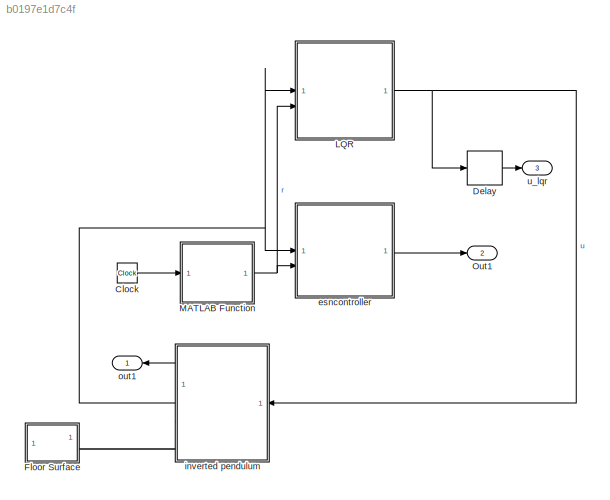
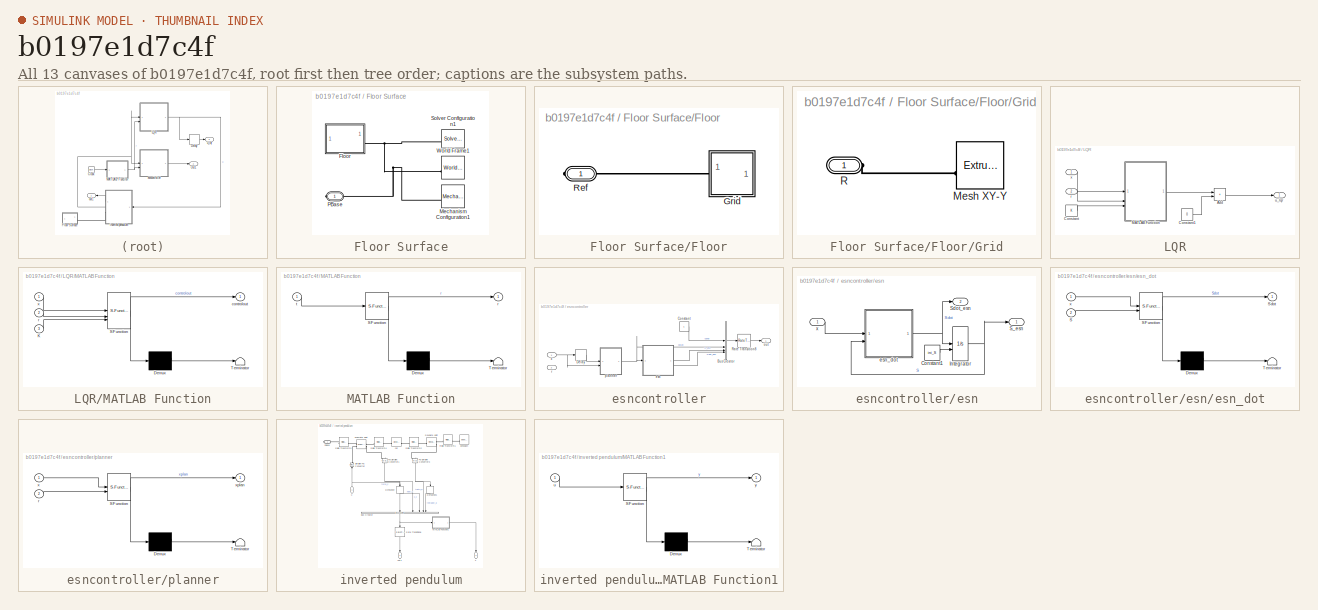
[diagram: thumbnail index - all 13 canvases of the model, root first then tree order]
MODEL slx_b0197e1d7c4f
KIND model
CONFIG AbsTol = auto
CONFIG EnableMultiTasking = off
CONFIG FixedStep = auto
CONFIG MaxStep = auto
CONFIG MinStep = auto
CONFIG RelTol = 1e-3
CONFIG SampleTimeConstraint = Unconstrained
CONFIG SolverName = VariableStepAuto
CONFIG StartTime = 0.0
CONFIG StopTime = stoptime
BLOCK [Clock] Clock
BLOCK [Delay] Delay
  DelayLength = esn.delaylen/esn.timestep
  InitialCondition = 0
  InputPortMap = u0
BLOCK [SubSystem] Floor Surface
BLOCK [SubSystem] Floor Surface/Floor
BLOCK [SubSystem] Floor Surface/Floor/Grid
BLOCK [Reference] Floor Surface/Floor/Grid/Mesh XY-Y  REF=sm_lib/Body Elements/Extruded Solid
  SourceBlock = sm_lib/Body Elements/Extruded Solid
  SourceType = Extruded Solid
BLOCK [PMIOPort] Floor Surface/Floor/Grid/R
  Side = Left
BLOCK [PMIOPort] Floor Surface/Floor/Ref
  NameLocation = top
  Side = Right
BLOCK [Reference] Floor Surface/Mechanism Configuration1  REF=sm_lib/Utilities/Mechanism
Configuration
  NameLocation = top
  SourceBlock = sm_lib/Utilities/Mechanism\nConfiguration
  SourceType = Mechanism\nConfiguration
BLOCK [PMIOPort] Floor Surface/PBase
  Side = Right
BLOCK [Reference] Floor Surface/Solver Configuration1  REF=nesl_utility/Solver
Configuration
  NameLocation = top
  SourceBlock = nesl_utility/Solver\nConfiguration
  SourceType = Solver\nConfiguration
BLOCK [Reference] Floor Surface/World Frame1  REF=sm_lib/Frames and
Transforms/World Frame
  NameLocation = top
  SourceBlock = sm_lib/Frames and\nTransforms/World Frame
  SourceType = World Frame
BLOCK [SubSystem] LQR
BLOCK [Sum] LQR/Add
  IconShape = rectangular
BLOCK [Constant] LQR/Constant
  Value = K
  VectorParams1D = off
BLOCK [Constant] LQR/Constant1
  Value = 0
  VectorParams1D = off
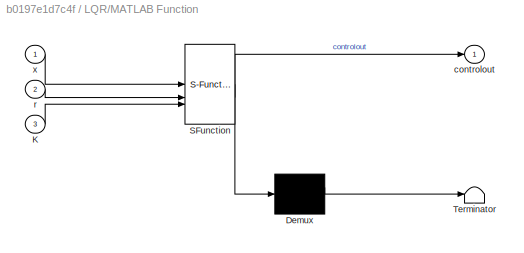
BLOCK [SubSystem] LQR/MATLAB Function
  ErrorFcn = Stateflow.Translate.translate
  LibrarySourceBlock = simulink/User-Defined\nFunctions/MATLAB Function
  PermitHierarchicalResolution = ExplicitOnly
  SFBlockType = MATLAB Function
  TreatAsAtomicUnit = on
BLOCK [Demux] LQR/MATLAB Function/ Demux 
  Outputs = 1
BLOCK [S-Function] LQR/MATLAB Function/ SFunction 
  EnableBusSupport = on
  FunctionName = sf_sfun
  PortCounts = [3 2]
  SFcnIsStateOwnerBlock = off
  SFunctionDeploymentMode = off
  Tag = Stateflow S-Function 5
BLOCK [Terminator] LQR/MATLAB Function/ Terminator 
BLOCK [Inport] LQR/MATLAB Function/K
  Port = 3
BLOCK [Outport] LQR/MATLAB Function/controlout
BLOCK [Inport] LQR/MATLAB Function/r
  Port = 2
BLOCK [Inport] LQR/MATLAB Function/x
BLOCK [Inport] LQR/r
  Port = 2
BLOCK [Outport] LQR/u_lqr
BLOCK [Inport] LQR/x
BLOCK [SubSystem] MATLAB Function
  ErrorFcn = Stateflow.Translate.translate
  LibrarySourceBlock = simulink/User-Defined\nFunctions/MATLAB Function
  PermitHierarchicalResolution = ExplicitOnly
  SFBlockType = MATLAB Function
  TreatAsAtomicUnit = on
BLOCK [Demux] MATLAB Function/ Demux 
  Outputs = 1
BLOCK [S-Function] MATLAB Function/ SFunction 
  EnableBusSupport = on
  FunctionName = sf_sfun
  Parameters = A1,A2,A3,t_lim,w1,w2,w3
  PortCounts = [1 2]
  SFcnIsStateOwnerBlock = off
  SFunctionDeploymentMode = off
  Tag = Stateflow S-Function 1
BLOCK [Terminator] MATLAB Function/ Terminator 
BLOCK [Outport] MATLAB Function/r
BLOCK [Inport] MATLAB Function/t
BLOCK [Outport] Out1
  Port = 2
BLOCK [SubSystem] esncontroller
BLOCK [BusCreator] esncontroller/Bus Creator
  DisplayOption = bar
  InheritFromInputs = on
  Inputs = 4
BLOCK [Constant] esncontroller/Constant
BLOCK [Delay] esncontroller/Delay
  DelayLength = delaylen/timestep
  InitialCondition = 0
  InputPortMap = u0
BLOCK [RateTransition] esncontroller/Rate Transition8
  OutPortSampleTime = timestep
BLOCK [SubSystem] esncontroller/esn
BLOCK [Constant] esncontroller/esn/Constant1
  Value = ini_S
  VectorParams1D = off
BLOCK [Integrator] esncontroller/esn/Integrator
  InitialConditionSource = external
BLOCK [Outport] esncontroller/esn/S_esn
BLOCK [Outport] esncontroller/esn/Sdot_esn
  Port = 2
BLOCK [SubSystem] esncontroller/esn/esn_dot
  ErrorFcn = Stateflow.Translate.translate
  LibrarySourceBlock = simulink/User-Defined\nFunctions/MATLAB Function
  PermitHierarchicalResolution = ExplicitOnly
  SFBlockType = MATLAB Function
  TreatAsAtomicUnit = on
BLOCK [Demux] esncontroller/esn/esn_dot/ Demux 
  Outputs = 1
BLOCK [S-Function] esncontroller/esn/esn_dot/ SFunction 
  EnableBusSupport = on
  FunctionName = sf_sfun
  Parameters = Nr,Wb,Win,Wr,nodenuminput,sizeinput,tau
  PortCounts = [2 2]
  SFcnIsStateOwnerBlock = off
  SFunctionDeploymentMode = off
  Tag = Stateflow S-Function 2
BLOCK [Terminator] esncontroller/esn/esn_dot/ Terminator 
BLOCK [Inport] esncontroller/esn/esn_dot/S
  Port = 2
BLOCK [Outport] esncontroller/esn/esn_dot/Sdot
BLOCK [Inport] esncontroller/esn/esn_dot/x
BLOCK [Inport] esncontroller/esn/x
BLOCK [Outport] esncontroller/out
BLOCK [SubSystem] esncontroller/planner
  ErrorFcn = Stateflow.Translate.translate
  LibrarySourceBlock = simulink/User-Defined\nFunctions/MATLAB Function
  PermitHierarchicalResolution = ExplicitOnly
  SFBlockType = MATLAB Function
  TreatAsAtomicUnit = on
BLOCK [Demux] esncontroller/planner/ Demux 
  Outputs = 1
BLOCK [S-Function] esncontroller/planner/ SFunction 
  EnableBusSupport = on
  FunctionName = sf_sfun
  PortCounts = [2 2]
  SFcnIsStateOwnerBlock = off
  SFunctionDeploymentMode = off
  Tag = Stateflow S-Function 7
BLOCK [Terminator] esncontroller/planner/ Terminator 
BLOCK [Inport] esncontroller/planner/r
  Port = 2
BLOCK [Inport] esncontroller/planner/x
BLOCK [Outport] esncontroller/planner/xplan
BLOCK [Inport] esncontroller/r
  Port = 2
BLOCK [Inport] esncontroller/x
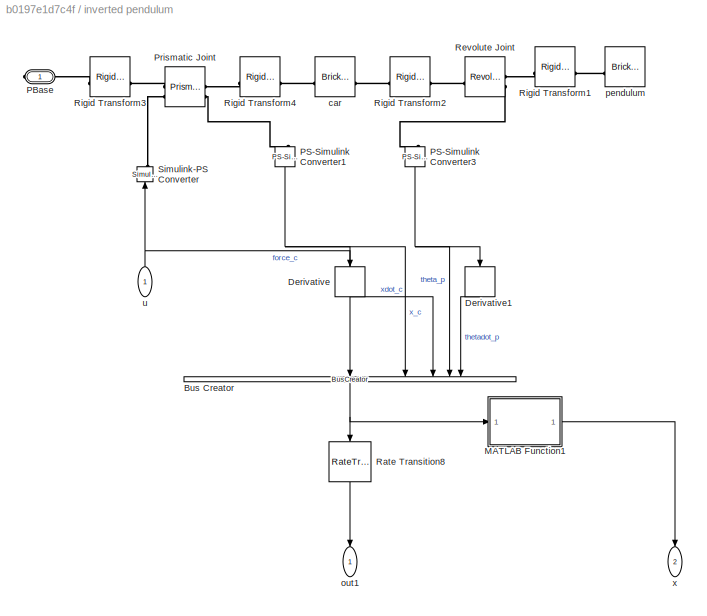
BLOCK [SubSystem] inverted pendulum
BLOCK [BusCreator] inverted pendulum/Bus Creator
  DisplayOption = bar
  InheritFromInputs = on
  Inputs = 5
  NameLocation = left
BLOCK [Derivative] inverted pendulum/Derivative
  NameLocation = left
BLOCK [Derivative] inverted pendulum/Derivative1
  NameLocation = left
BLOCK [SubSystem] inverted pendulum/MATLAB Function1
  ErrorFcn = Stateflow.Translate.translate
  LibrarySourceBlock = simulink/User-Defined\nFunctions/MATLAB Function
  PermitHierarchicalResolution = ExplicitOnly
  SFBlockType = MATLAB Function
  TreatAsAtomicUnit = on
BLOCK [Demux] inverted pendulum/MATLAB Function1/ Demux 
  Outputs = 1
BLOCK [S-Function] inverted pendulum/MATLAB Function1/ SFunction 
  EnableBusSupport = on
  FunctionName = sf_sfun
  PortCounts = [1 2]
  SFcnIsStateOwnerBlock = off
  SFunctionDeploymentMode = off
  Tag = Stateflow S-Function 4
BLOCK [Terminator] inverted pendulum/MATLAB Function1/ Terminator 
BLOCK [Inport] inverted pendulum/MATLAB Function1/u
BLOCK [Outport] inverted pendulum/MATLAB Function1/y
BLOCK [PMIOPort] inverted pendulum/PBase
  Side = Right
BLOCK [Reference] inverted pendulum/PS-Simulink Converter1  REF=nesl_utility/PS-Simulink
Converter
  NameLocation = left
  SourceBlock = nesl_utility/PS-Simulink\nConverter
  SourceType = PS-Simulink\nConverter
BLOCK [Reference] inverted pendulum/PS-Simulink Converter3  REF=nesl_utility/PS-Simulink
Converter
  NameLocation = left
  SourceBlock = nesl_utility/PS-Simulink\nConverter
  SourceType = PS-Simulink\nConverter
BLOCK [Reference] inverted pendulum/Prismatic Joint  REF=sm_lib/Joints/Prismatic
Joint
  SourceBlock = sm_lib/Joints/Prismatic\nJoint
  SourceType = Prismatic\nJoint
BLOCK [RateTransition] inverted pendulum/Rate Transition8
  NameLocation = left
  OutPortSampleTime = 0.01
BLOCK [Reference] inverted pendulum/Revolute Joint  REF=sm_lib/Joints/Revolute Joint
  SourceBlock = sm_lib/Joints/Revolute Joint
  SourceType = Revolute Joint
BLOCK [Reference] inverted pendulum/Rigid Transform1  REF=sm_lib/Frames and
Transforms/Rigid
Transform
  SourceBlock = sm_lib/Frames and\nTransforms/Rigid\nTransform
  SourceType = Rigid\nTransform
BLOCK [Reference] inverted pendulum/Rigid Transform2  REF=sm_lib/Frames and
Transforms/Rigid
Transform
  SourceBlock = sm_lib/Frames and\nTransforms/Rigid\nTransform
  SourceType = Rigid\nTransform
BLOCK [Reference] inverted pendulum/Rigid Transform3  REF=sm_lib/Frames and
Transforms/Rigid
Transform
  SourceBlock = sm_lib/Frames and\nTransforms/Rigid\nTransform
  SourceType = Rigid\nTransform
BLOCK [Reference] inverted pendulum/Rigid Transform4  REF=sm_lib/Frames and
Transforms/Rigid
Transform
  SourceBlock = sm_lib/Frames and\nTransforms/Rigid\nTransform
  SourceType = Rigid\nTransform
BLOCK [Reference] inverted pendulum/Simulink-PS Converter  REF=nesl_utility/Simulink-PS
Converter
  NameLocation = right
  SourceBlock = nesl_utility/Simulink-PS\nConverter
  SourceType = Simulink-PS\nConverter
BLOCK [Reference] inverted pendulum/car  REF=sm_lib/Body Elements/Brick Solid
  SourceBlock = sm_lib/Body Elements/Brick Solid
  SourceType = Brick Solid
BLOCK [Outport] inverted pendulum/out1
  NameLocation = left
BLOCK [Reference] inverted pendulum/pendulum  REF=sm_lib/Body Elements/Brick Solid
  SourceBlock = sm_lib/Body Elements/Brick Solid
  SourceType = Brick Solid
BLOCK [Inport] inverted pendulum/u
  NameLocation = right
BLOCK [Outport] inverted pendulum/x
  NameLocation = left
  Port = 2
BLOCK [Outport] out1
BLOCK [Outport] u_lqr
  Port = 3
LINE Clock:1 -> MATLAB Function:1
LINE Delay:1 -> u_lqr:1
LINE LQR/Add:1 -> LQR/u_lqr:1
LINE LQR/Constant1:1 -> LQR/Add:2
LINE LQR/Constant:1 -> LQR/MATLAB Function:3
LINE LQR/MATLAB Function:1 -> LQR/Add:1
LINE LQR/r:1 -> LQR/MATLAB Function:2
LINE LQR/x:1 -> LQR/MATLAB Function:1
NET LQR:1 -> Delay:1, inverted pendulum:1
NET MATLAB Function:1 -> LQR:2, esncontroller:2
LINE esncontroller/Bus Creator:1 -> esncontroller/Rate Transition8:1
LINE esncontroller/Constant:1 -> esncontroller/Bus Creator:1
LINE esncontroller/Delay:1 -> esncontroller/planner:1
LINE esncontroller/Rate Transition8:1 -> esncontroller/out:1
LINE esncontroller/esn/Constant1:1 -> esncontroller/esn/Integrator:2
NET esncontroller/esn/Integrator:1 -> esncontroller/esn/S_esn:1, esncontroller/esn/esn_dot:2
NET esncontroller/esn/esn_dot:1 -> esncontroller/esn/Integrator:1, esncontroller/esn/Sdot_esn:1
LINE esncontroller/esn/x:1 -> esncontroller/esn/esn_dot:1
LINE esncontroller/esn:1 -> esncontroller/Bus Creator:3
LINE esncontroller/esn:2 -> esncontroller/Bus Creator:4
NET esncontroller/planner:1 -> esncontroller/Bus Creator:2, esncontroller/esn:1
NET esncontroller/x:1 -> esncontroller/Delay:1, esncontroller/planner:2
LINE esncontroller:1 -> Out1:1
NET inverted pendulum/Bus Creator:1 -> inverted pendulum/MATLAB Function1:1, inverted pendulum/Rate Transition8:1
LINE inverted pendulum/Derivative1:1 -> inverted pendulum/Bus Creator:5
LINE inverted pendulum/Derivative:1 -> inverted pendulum/Bus Creator:3
LINE inverted pendulum/MATLAB Function1:1 -> inverted pendulum/x:1
NET inverted pendulum/PS-Simulink Converter1:1 -> inverted pendulum/Bus Creator:2, inverted pendulum/Derivative:1
NET inverted pendulum/PS-Simulink Converter3:1 -> inverted pendulum/Bus Creator:4, inverted pendulum/Derivative1:1
LINE inverted pendulum/Rate Transition8:1 -> inverted pendulum/out1:1
NET inverted pendulum/u:1 -> inverted pendulum/Bus Creator:1, inverted pendulum/Simulink-PS Converter:1
LINE inverted pendulum:1 -> out1:1
NET inverted pendulum:2 -> LQR:1, esncontroller:1
PLINE Floor Surface/Floor/Grid/Mesh XY-Y:RConn1 -- Floor Surface/Floor/Grid/R:RConn1
PLINE Floor Surface/Floor/Grid:LConn1 -- Floor Surface/Floor/Ref:RConn1
PNET net1: Floor Surface/Floor:RConn1 -- Floor Surface/Mechanism Configuration1:RConn1 -- Floor Surface/PBase:RConn1 -- Floor Surface/Solver Configuration1:RConn1 -- Floor Surface/World Frame1:RConn1
PLINE Floor Surface:RConn1 -- inverted pendulum:RConn1
PLINE inverted pendulum/PBase:RConn1 -- inverted pendulum/Rigid Transform3:LConn1
PLINE inverted pendulum/PS-Simulink Converter1:LConn1 -- inverted pendulum/Prismatic Joint:RConn2
PLINE inverted pendulum/PS-Simulink Converter3:LConn1 -- inverted pendulum/Revolute Joint:RConn2
PLINE inverted pendulum/Prismatic Joint:LConn1 -- inverted pendulum/Rigid Transform3:RConn1
PLINE inverted pendulum/Prismatic Joint:LConn2 -- inverted pendulum/Simulink-PS Converter:RConn1
PLINE inverted pendulum/Prismatic Joint:RConn1 -- inverted pendulum/Rigid Transform4:LConn1
PLINE inverted pendulum/Revolute Joint:LConn1 -- inverted pendulum/Rigid Transform2:RConn1
PLINE inverted pendulum/Revolute Joint:RConn1 -- inverted pendulum/Rigid Transform1:LConn1
PLINE inverted pendulum/Rigid Transform1:RConn1 -- inverted pendulum/pendulum:LConn1
PLINE inverted pendulum/Rigid Transform2:LConn1 -- inverted pendulum/car:LConn1
PLINE inverted pendulum/Rigid Transform4:RConn1 -- inverted pendulum/car:RConn1
note: NET lines group one-source signal fan-out (src -> all destinations, sorted); 1:1 wires keep LINE; PNET lines group multi-terminal physical nets as a canonical sorted terminal list (undirected conserving connections); 2-terminal nets keep the pairwise PLINE form
CHART MATLAB Function states=1 transitions=1
  STATE_LABEL 'eML_blk_kernel()'
  STATE_LABEL 'SCRIPT:\nfunction r = fcn(t, t_lim, w2, w1, w3, A1, A2, A3)\n\nif t>t_lim\n    t = t_lim;\nend\n\nsint1 = A1*sin(w1*t);\nsint2 = A2*sin(w2*t);\nsint3 = A3*sin(w3*t);\n\nrx = sint1 + sint2 + sint3;\n\nr = [rx;\n    0;\n    0;\n    0];\n\nend'
CHART esncontroller/esn/esn_dot states=1 transitions=1
  STATE_LABEL 'eML_blk_kernel()'
  STATE_LABEL 'SCRIPT:\nfunction Sdot = fcn(x, S, Nr, sizeinput, nodenuminput, Win, Wr, Wb, tau)\n\nu = zeros(Nr, 1);\nfor j = 1:sizeinput\n    u(j:(j+nodenuminput-1)) = x(j,1);\nend\n\nSdot = (-S + tanh(Win.*u + Wr*S + Wb))/tau;\n'
CHART inverted pendulum/MATLAB Function1 states=1 transitions=1
  STATE_LABEL 'eML_blk_kernel()'
  STATE_LABEL 'SCRIPT:\nfunction y = fcn(u)\n\ny = u(2:end);\n'
CHART LQR/MATLAB Function states=1 transitions=1
  STATE_LABEL 'eML_blk_kernel()'
  STATE_LABEL 'SCRIPT:\nfunction controlout = fcn(x, r, K)\n\n% K = [-1.00000000000000\t-0.865822552934310\t-5.68613442843624\t-0.578809286593489];\n\ncontrolout = K*(r-x);\n\n'
CHART esncontroller/planner states=1 transitions=1
  STATE_LABEL 'eML_blk_kernel()'
  STATE_LABEL 'SCRIPT:\nfunction xplan = fcn(x, r)\n\nxplan = [x; r];\n\nend'
CHART  states=0 transitions=0
CHART  states=0 transitions=0
CHART  states=0 transitions=0
CHART  states=0 transitions=0
CHART  states=0 transitions=0
